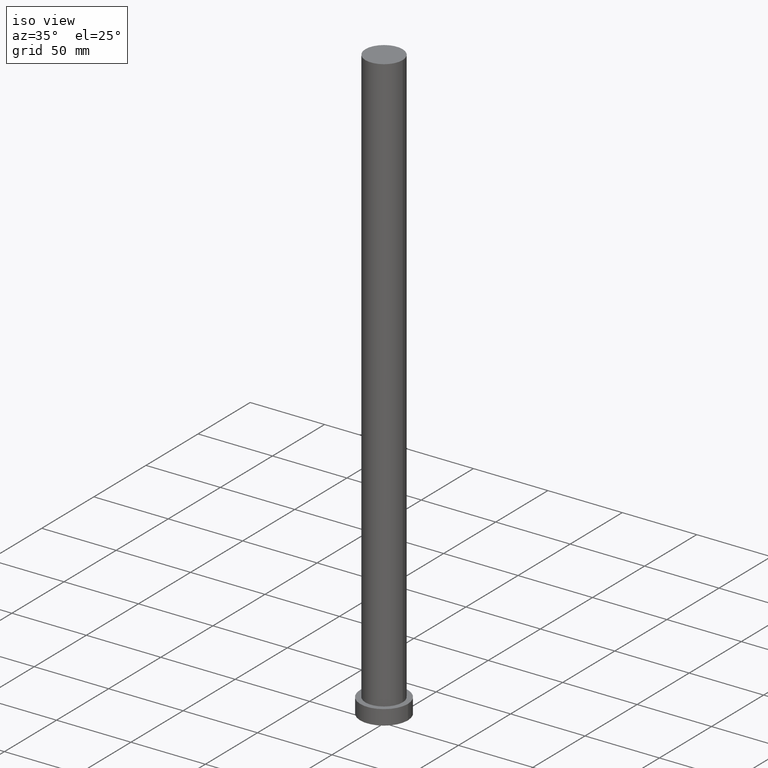
[diagram: clean part render]
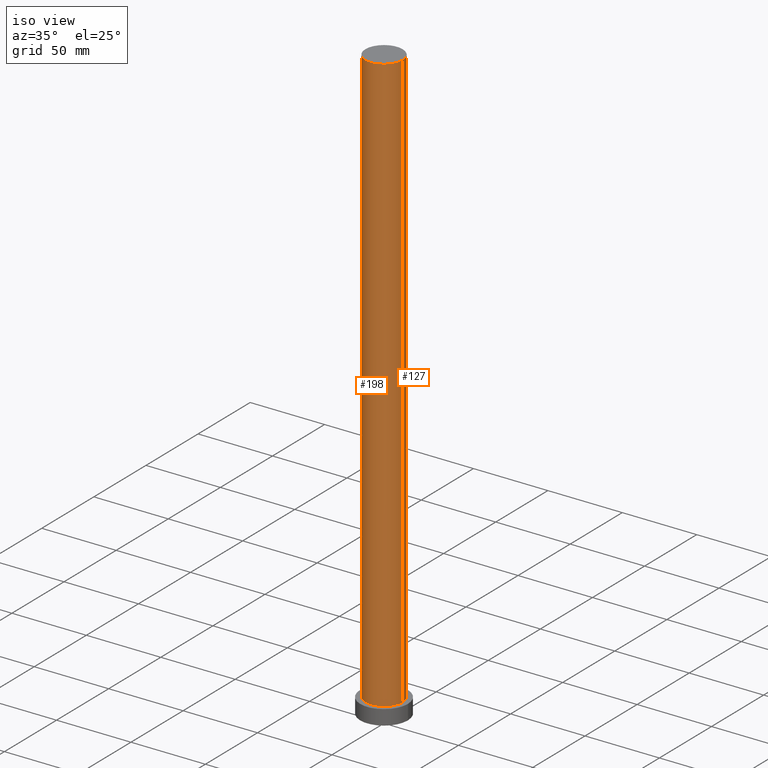
[diagram: same view with one multi-face feature highlighted, each face labeled with its STEP entity id]
A machine part, iso view. The highlighted faces form ONE feature: a constant-radius fillet chain: 2 tangent blend faces with common blend radius 12.5 mm. The faces share edges in the B-rep.
Their STEP definitions:
[1] entity #127 (Cylinder):
#21 = EDGE_CURVE ( 'NONE', #167, #217, #163, .T. ) ;
#28 = CARTESIAN_POINT ( 'NONE',  ( 12.50000000000000000, 1.530808498934191521E-15, 10.00000000000000000 ) ) ;
#34 = CYLINDRICAL_SURFACE ( 'NONE', #86, 12.50000000000000000 ) ;
#35 = CARTESIAN_POINT ( 'NONE',  ( 0.000000000000000000, 0.000000000000000000, 10.00000000000000000 ) ) ;
#39 = EDGE_CURVE ( 'NONE', #238, #249, #68, .T. ) ;
#43 = EDGE_CURVE ( 'NONE', #238, #167, #232, .T. ) ;
#52 = CARTESIAN_POINT ( 'NONE',  ( 0.000000000000000000, 0.000000000000000000, 400.0000000000000000 ) ) ;
#53 = VECTOR ( 'NONE', #60, 1000.000000000000000 ) ;
#55 = CARTESIAN_POINT ( 'NONE',  ( 0.000000000000000000, 0.000000000000000000, 400.0000000000000000 ) ) ;
#60 = DIRECTION ( 'NONE',  ( -0.000000000000000000, -0.000000000000000000, -1.000000000000000000 ) ) ;
#63 = CARTESIAN_POINT ( 'NONE',  ( -12.50000000000000000, 0.000000000000000000, 400.0000000000000000 ) ) ;
#68 = CIRCLE ( 'NONE', #218, 12.50000000000000000 ) ;
#72 = EDGE_LOOP ( 'NONE', ( #199, #160, #201, #147 ) ) ;
#86 = AXIS2_PLACEMENT_3D ( 'NONE', #55, #119, #151 ) ;
#91 = CARTESIAN_POINT ( 'NONE',  ( 12.50000000000000000, 1.530808498934191521E-15, 400.0000000000000000 ) ) ;
#93 = CARTESIAN_POINT ( 'NONE',  ( 12.50000000000000000, 1.530808498934191521E-15, 400.0000000000000000 ) ) ;
#98 = CARTESIAN_POINT ( 'NONE',  ( -12.50000000000000000, 0.000000000000000000, 10.00000000000000000 ) ) ;
#111 = DIRECTION ( 'NONE',  ( -0.000000000000000000, -0.000000000000000000, -1.000000000000000000 ) ) ;
#117 = DIRECTION ( 'NONE',  ( 0.000000000000000000, 0.000000000000000000, 1.000000000000000000 ) ) ;
#119 = DIRECTION ( 'NONE',  ( -0.000000000000000000, -0.000000000000000000, -1.000000000000000000 ) ) ;
#124 = AXIS2_PLACEMENT_3D ( 'NONE', #35, #117, #233 ) ;
#127 = ADVANCED_FACE ( 'NONE', ( #202 ), #34, .T. ) ;
#147 = ORIENTED_EDGE ( 'NONE', *, *, #195, .F. ) ;
#151 = DIRECTION ( 'NONE',  ( -1.000000000000000000, 0.000000000000000000, 0.000000000000000000 ) ) ;
#160 = ORIENTED_EDGE ( 'NONE', *, *, #43, .T. ) ;
#163 = CIRCLE ( 'NONE', #124, 12.50000000000000000 ) ;
#167 = VERTEX_POINT ( 'NONE', #28 ) ;
#169 = DIRECTION ( 'NONE',  ( 0.000000000000000000, 0.000000000000000000, 1.000000000000000000 ) ) ;
#195 = EDGE_CURVE ( 'NONE', #249, #217, #235, .T. ) ;
#199 = ORIENTED_EDGE ( 'NONE', *, *, #39, .F. ) ;
#201 = ORIENTED_EDGE ( 'NONE', *, *, #21, .T. ) ;
#202 = FACE_OUTER_BOUND ( 'NONE', #72, .T. ) ;
#203 = VECTOR ( 'NONE', #111, 1000.000000000000000 ) ;
#212 = CARTESIAN_POINT ( 'NONE',  ( -12.50000000000000000, 0.000000000000000000, 400.0000000000000000 ) ) ;
#217 = VERTEX_POINT ( 'NONE', #98 ) ;
#218 = AXIS2_PLACEMENT_3D ( 'NONE', #52, #169, #223 ) ;
#223 = DIRECTION ( 'NONE',  ( 1.000000000000000000, 0.000000000000000000, 0.000000000000000000 ) ) ;
#232 = LINE ( 'NONE', #93, #203 ) ;
#233 = DIRECTION ( 'NONE',  ( 1.000000000000000000, 0.000000000000000000, 0.000000000000000000 ) ) ;
#235 = LINE ( 'NONE', #212, #53 ) ;
#238 = VERTEX_POINT ( 'NONE', #91 ) ;
#249 = VERTEX_POINT ( 'NONE', #63 ) ;
[2] entity #198 (Cylinder):
#18 = DIRECTION ( 'NONE',  ( -0.000000000000000000, -0.000000000000000000, -1.000000000000000000 ) ) ;
#22 = AXIS2_PLACEMENT_3D ( 'NONE', #128, #140, #30 ) ;
#28 = CARTESIAN_POINT ( 'NONE',  ( 12.50000000000000000, 1.530808498934191521E-15, 10.00000000000000000 ) ) ;
#30 = DIRECTION ( 'NONE',  ( 1.000000000000000000, 0.000000000000000000, 0.000000000000000000 ) ) ;
#37 = CYLINDRICAL_SURFACE ( 'NONE', #153, 12.50000000000000000 ) ;
#43 = EDGE_CURVE ( 'NONE', #238, #167, #232, .T. ) ;
#53 = VECTOR ( 'NONE', #60, 1000.000000000000000 ) ;
#60 = DIRECTION ( 'NONE',  ( -0.000000000000000000, -0.000000000000000000, -1.000000000000000000 ) ) ;
#63 = CARTESIAN_POINT ( 'NONE',  ( -12.50000000000000000, 0.000000000000000000, 400.0000000000000000 ) ) ;
#70 = EDGE_CURVE ( 'NONE', #217, #167, #71, .T. ) ;
#71 = CIRCLE ( 'NONE', #22, 12.50000000000000000 ) ;
#76 = ORIENTED_EDGE ( 'NONE', *, *, #70, .T. ) ;
#91 = CARTESIAN_POINT ( 'NONE',  ( 12.50000000000000000, 1.530808498934191521E-15, 400.0000000000000000 ) ) ;
#93 = CARTESIAN_POINT ( 'NONE',  ( 12.50000000000000000, 1.530808498934191521E-15, 400.0000000000000000 ) ) ;
#98 = CARTESIAN_POINT ( 'NONE',  ( -12.50000000000000000, 0.000000000000000000, 10.00000000000000000 ) ) ;
#103 = ORIENTED_EDGE ( 'NONE', *, *, #195, .T. ) ;
#111 = DIRECTION ( 'NONE',  ( -0.000000000000000000, -0.000000000000000000, -1.000000000000000000 ) ) ;
#128 = CARTESIAN_POINT ( 'NONE',  ( 0.000000000000000000, 0.000000000000000000, 10.00000000000000000 ) ) ;
#135 = EDGE_LOOP ( 'NONE', ( #240, #215, #103, #76 ) ) ;
#140 = DIRECTION ( 'NONE',  ( 0.000000000000000000, 0.000000000000000000, 1.000000000000000000 ) ) ;
#153 = AXIS2_PLACEMENT_3D ( 'NONE', #192, #18, #206 ) ;
#167 = VERTEX_POINT ( 'NONE', #28 ) ;
#171 = CARTESIAN_POINT ( 'NONE',  ( 0.000000000000000000, 0.000000000000000000, 400.0000000000000000 ) ) ;
#185 = FACE_OUTER_BOUND ( 'NONE', #135, .T. ) ;
#192 = CARTESIAN_POINT ( 'NONE',  ( 0.000000000000000000, 0.000000000000000000, 400.0000000000000000 ) ) ;
#195 = EDGE_CURVE ( 'NONE', #249, #217, #235, .T. ) ;
#197 = DIRECTION ( 'NONE',  ( 1.000000000000000000, 0.000000000000000000, 0.000000000000000000 ) ) ;
#198 = ADVANCED_FACE ( 'NONE', ( #185 ), #37, .T. ) ;
#203 = VECTOR ( 'NONE', #111, 1000.000000000000000 ) ;
#206 = DIRECTION ( 'NONE',  ( -1.000000000000000000, 0.000000000000000000, 0.000000000000000000 ) ) ;
#212 = CARTESIAN_POINT ( 'NONE',  ( -12.50000000000000000, 0.000000000000000000, 400.0000000000000000 ) ) ;
#214 = AXIS2_PLACEMENT_3D ( 'NONE', #171, #253, #197 ) ;
#215 = ORIENTED_EDGE ( 'NONE', *, *, #245, .F. ) ;
#217 = VERTEX_POINT ( 'NONE', #98 ) ;
#219 = CIRCLE ( 'NONE', #214, 12.50000000000000000 ) ;
#232 = LINE ( 'NONE', #93, #203 ) ;
#235 = LINE ( 'NONE', #212, #53 ) ;
#238 = VERTEX_POINT ( 'NONE', #91 ) ;
#240 = ORIENTED_EDGE ( 'NONE', *, *, #43, .F. ) ;
#245 = EDGE_CURVE ( 'NONE', #249, #238, #219, .T. ) ;
#249 = VERTEX_POINT ( 'NONE', #63 ) ;
#253 = DIRECTION ( 'NONE',  ( 0.000000000000000000, 0.000000000000000000, 1.000000000000000000 ) ) ;